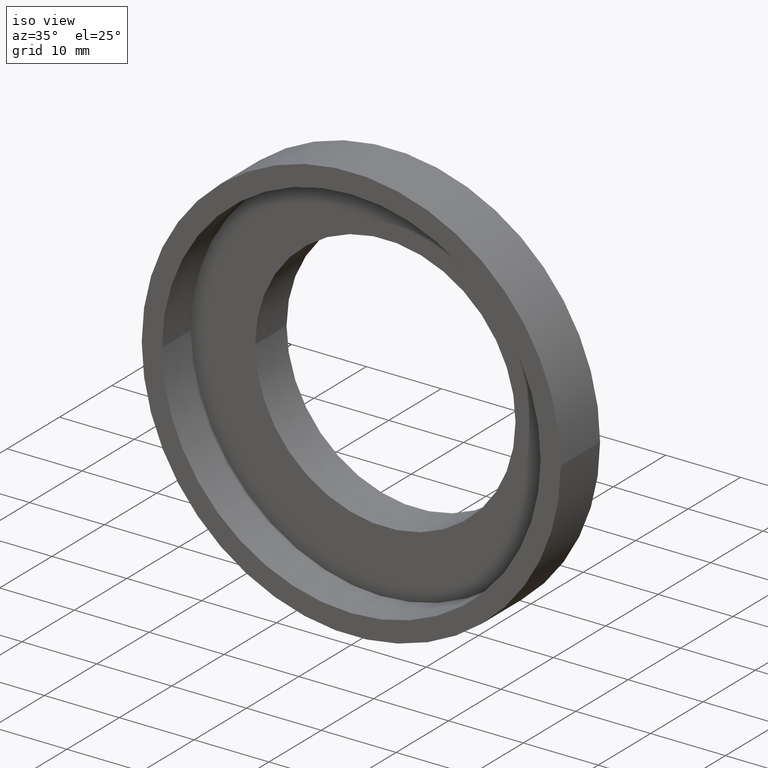
[diagram: clean part render]
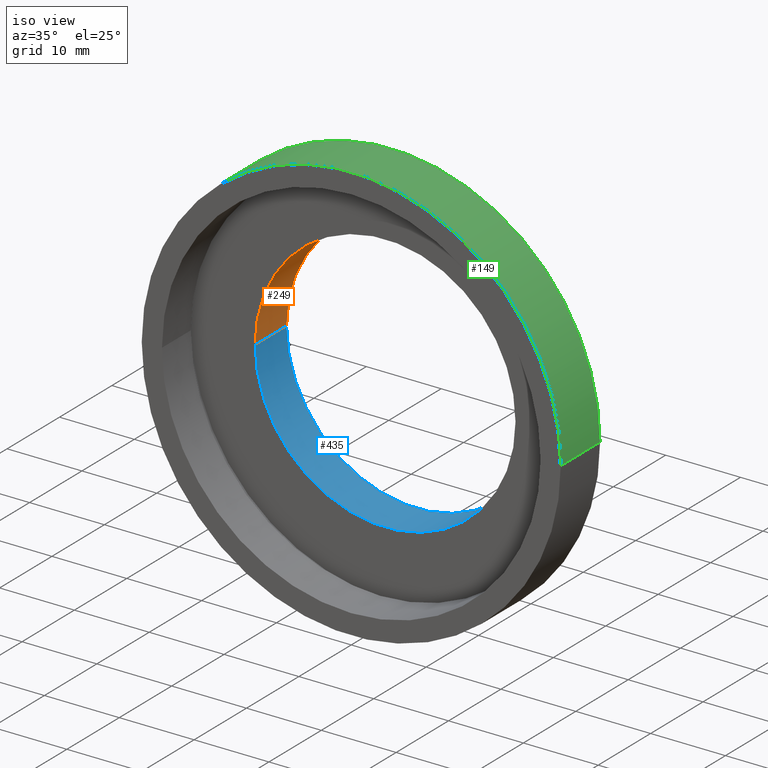
[diagram: same view with three faces highlighted in distinct colors, each labeled with its STEP entity id]
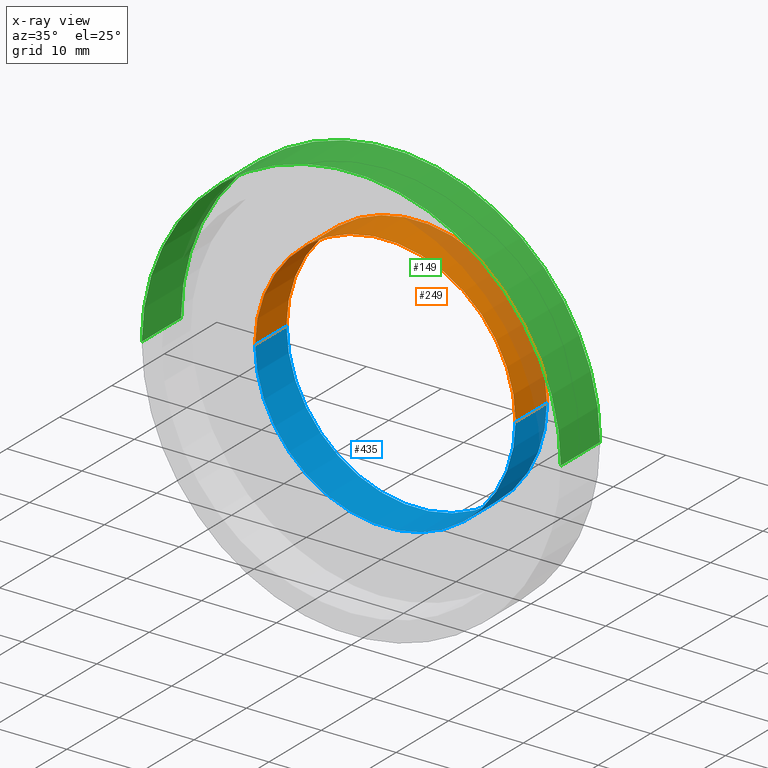
[diagram: x-ray of the same camera — body ghosted, the three highlighted faces saturated]
A machine part, iso view with three faces highlighted in distinct colors.
The next image is the same camera in x-ray (body ghosted, the three faces saturated) — at least one of them is partly hidden behind the body in this view.
Their STEP definitions:

[orange] entity #249 — the highlighted cylindrical surface (partial cylindrical patch) has radius 17.4 mm, axis along (-0, 1, -0).
#56 = EDGE_CURVE ( 'NONE', #312, #511, #372, .T. ) ;
#60 = DIRECTION ( 'NONE',  ( -1.224646799147351000E-016, 1.000000000000000000, -0.0000000000000000000 ) ) ;
#77 = VERTEX_POINT ( 'NONE', #156 ) ;
#91 = EDGE_CURVE ( 'NONE', #431, #511, #116, .T. ) ;
#105 = DIRECTION ( 'NONE',  ( -1.224646799147351000E-016, 1.000000000000000000, -0.0000000000000000000 ) ) ;
#114 = DIRECTION ( 'NONE',  ( -1.000000000000000000, -9.969675149291995700E-017, 0.0000000000000000000 ) ) ;
#116 = LINE ( 'NONE', #159, #509 ) ;
#150 = CARTESIAN_POINT ( 'NONE',  ( 17.39999999999999900, 12.49999999999999800, 2.130885430516394500E-015 ) ) ;
#156 = CARTESIAN_POINT ( 'NONE',  ( -17.39999999999999900, 6.499999999999995600, 0.0000000000000000000 ) ) ;
#159 = CARTESIAN_POINT ( 'NONE',  ( 17.39999999999999900, 16.88601823708208000, 2.130885430516394500E-015 ) ) ;
#174 = DIRECTION ( 'NONE',  ( -1.224646799147351000E-016, 1.000000000000000000, -0.0000000000000000000 ) ) ;
#197 = AXIS2_PLACEMENT_3D ( 'NONE', #357, #60, #311 ) ;
#202 = CIRCLE ( 'NONE', #356, 17.39999999999999900 ) ;
#211 = EDGE_LOOP ( 'NONE', ( #562, #404, #321, #258 ) ) ;
#227 = DIRECTION ( 'NONE',  ( -1.000000000000000000, -9.969675149291995700E-017, 0.0000000000000000000 ) ) ;
#249 = ADVANCED_FACE ( 'NONE', ( #401 ), #334, .F. ) ;
#252 = DIRECTION ( 'NONE',  ( -1.224646799147351000E-016, 1.000000000000000000, -0.0000000000000000000 ) ) ;
#258 = ORIENTED_EDGE ( 'NONE', *, *, #56, .T. ) ;
#273 = DIRECTION ( 'NONE',  ( -1.224646799147351000E-016, 1.000000000000000000, -0.0000000000000000000 ) ) ;
#288 = CARTESIAN_POINT ( 'NONE',  ( 17.39999999999999900, 6.499999999999999100, 2.130885430516394500E-015 ) ) ;
#311 = DIRECTION ( 'NONE',  ( -1.000000000000000000, -1.993935029858399100E-016, 0.0000000000000000000 ) ) ;
#312 = VERTEX_POINT ( 'NONE', #492 ) ;
#321 = ORIENTED_EDGE ( 'NONE', *, *, #364, .T. ) ;
#334 = CYLINDRICAL_SURFACE ( 'NONE', #197, 17.39999999999999900 ) ;
#346 = VECTOR ( 'NONE', #174, 1000.000000000000000 ) ;
#356 = AXIS2_PLACEMENT_3D ( 'NONE', #498, #273, #227 ) ;
#357 = CARTESIAN_POINT ( 'NONE',  ( 0.0000000000000000000, 16.88601823708207700, 0.0000000000000000000 ) ) ;
#364 = EDGE_CURVE ( 'NONE', #77, #312, #407, .T. ) ;
#372 = CIRCLE ( 'NONE', #538, 17.39999999999999900 ) ;
#398 = EDGE_CURVE ( 'NONE', #77, #431, #202, .T. ) ;
#400 = CARTESIAN_POINT ( 'NONE',  ( 5.371323195044474300E-016, 12.49999999999999600, 0.0000000000000000000 ) ) ;
#401 = FACE_OUTER_BOUND ( 'NONE', #211, .T. ) ;
#404 = ORIENTED_EDGE ( 'NONE', *, *, #398, .F. ) ;
#407 = LINE ( 'NONE', #410, #346 ) ;
#410 = CARTESIAN_POINT ( 'NONE',  ( -17.39999999999999900, 16.88601823708207300, 0.0000000000000000000 ) ) ;
#431 = VERTEX_POINT ( 'NONE', #288 ) ;
#492 = CARTESIAN_POINT ( 'NONE',  ( -17.39999999999999900, 12.49999999999999500, 0.0000000000000000000 ) ) ;
#498 = CARTESIAN_POINT ( 'NONE',  ( 1.271920398992858000E-015, 6.499999999999997300, 0.0000000000000000000 ) ) ;
#509 = VECTOR ( 'NONE', #105, 1000.000000000000000 ) ;
#511 = VERTEX_POINT ( 'NONE', #150 ) ;
#538 = AXIS2_PLACEMENT_3D ( 'NONE', #400, #252, #114 ) ;
#562 = ORIENTED_EDGE ( 'NONE', *, *, #91, .F. ) ;

[blue] entity #435 — the highlighted cylindrical surface (partial cylindrical patch) has radius 17.4 mm, axis along (-0, 1, -0).
#9 = AXIS2_PLACEMENT_3D ( 'NONE', #376, #280, #601 ) ;
#20 = AXIS2_PLACEMENT_3D ( 'NONE', #264, #586, #118 ) ;
#77 = VERTEX_POINT ( 'NONE', #156 ) ;
#91 = EDGE_CURVE ( 'NONE', #431, #511, #116, .T. ) ;
#105 = DIRECTION ( 'NONE',  ( -1.224646799147351000E-016, 1.000000000000000000, -0.0000000000000000000 ) ) ;
#116 = LINE ( 'NONE', #159, #509 ) ;
#118 = DIRECTION ( 'NONE',  ( -1.000000000000000000, -9.969675149291995700E-017, 0.0000000000000000000 ) ) ;
#150 = CARTESIAN_POINT ( 'NONE',  ( 17.39999999999999900, 12.49999999999999800, 2.130885430516394500E-015 ) ) ;
#156 = CARTESIAN_POINT ( 'NONE',  ( -17.39999999999999900, 6.499999999999995600, 0.0000000000000000000 ) ) ;
#159 = CARTESIAN_POINT ( 'NONE',  ( 17.39999999999999900, 16.88601823708208000, 2.130885430516394500E-015 ) ) ;
#174 = DIRECTION ( 'NONE',  ( -1.224646799147351000E-016, 1.000000000000000000, -0.0000000000000000000 ) ) ;
#177 = EDGE_CURVE ( 'NONE', #511, #312, #443, .T. ) ;
#242 = CARTESIAN_POINT ( 'NONE',  ( 0.0000000000000000000, 16.88601823708207700, 0.0000000000000000000 ) ) ;
#264 = CARTESIAN_POINT ( 'NONE',  ( 1.271920398992858000E-015, 6.499999999999997300, 0.0000000000000000000 ) ) ;
#274 = EDGE_CURVE ( 'NONE', #431, #77, #371, .T. ) ;
#280 = DIRECTION ( 'NONE',  ( -1.224646799147351000E-016, 1.000000000000000000, -0.0000000000000000000 ) ) ;
#288 = CARTESIAN_POINT ( 'NONE',  ( 17.39999999999999900, 6.499999999999999100, 2.130885430516394500E-015 ) ) ;
#300 = DIRECTION ( 'NONE',  ( -1.000000000000000000, -1.993935029858399100E-016, 0.0000000000000000000 ) ) ;
#312 = VERTEX_POINT ( 'NONE', #492 ) ;
#341 = CYLINDRICAL_SURFACE ( 'NONE', #505, 17.39999999999999900 ) ;
#346 = VECTOR ( 'NONE', #174, 1000.000000000000000 ) ;
#364 = EDGE_CURVE ( 'NONE', #77, #312, #407, .T. ) ;
#371 = CIRCLE ( 'NONE', #20, 17.39999999999999900 ) ;
#376 = CARTESIAN_POINT ( 'NONE',  ( 5.371323195044474300E-016, 12.49999999999999600, 0.0000000000000000000 ) ) ;
#407 = LINE ( 'NONE', #410, #346 ) ;
#410 = CARTESIAN_POINT ( 'NONE',  ( -17.39999999999999900, 16.88601823708207300, 0.0000000000000000000 ) ) ;
#417 = ORIENTED_EDGE ( 'NONE', *, *, #91, .T. ) ;
#431 = VERTEX_POINT ( 'NONE', #288 ) ;
#435 = ADVANCED_FACE ( 'NONE', ( #506 ), #341, .F. ) ;
#443 = CIRCLE ( 'NONE', #9, 17.39999999999999900 ) ;
#492 = CARTESIAN_POINT ( 'NONE',  ( -17.39999999999999900, 12.49999999999999500, 0.0000000000000000000 ) ) ;
#505 = AXIS2_PLACEMENT_3D ( 'NONE', #242, #574, #300 ) ;
#506 = FACE_OUTER_BOUND ( 'NONE', #572, .T. ) ;
#509 = VECTOR ( 'NONE', #105, 1000.000000000000000 ) ;
#511 = VERTEX_POINT ( 'NONE', #150 ) ;
#519 = ORIENTED_EDGE ( 'NONE', *, *, #364, .F. ) ;
#526 = ORIENTED_EDGE ( 'NONE', *, *, #274, .F. ) ;
#549 = ORIENTED_EDGE ( 'NONE', *, *, #177, .T. ) ;
#572 = EDGE_LOOP ( 'NONE', ( #526, #417, #549, #519 ) ) ;
#574 = DIRECTION ( 'NONE',  ( -1.224646799147351000E-016, 1.000000000000000000, -0.0000000000000000000 ) ) ;
#586 = DIRECTION ( 'NONE',  ( -1.224646799147351000E-016, 1.000000000000000000, -0.0000000000000000000 ) ) ;
#601 = DIRECTION ( 'NONE',  ( -1.000000000000000000, -9.969675149291995700E-017, 0.0000000000000000000 ) ) ;

[green] entity #149 — the highlighted cylindrical surface (partial cylindrical patch) has radius 28 mm, axis along (-0, 1, -0).
#28 = EDGE_CURVE ( 'NONE', #140, #278, #225, .T. ) ;
#61 = ORIENTED_EDGE ( 'NONE', *, *, #108, .F. ) ;
#67 = AXIS2_PLACEMENT_3D ( 'NONE', #83, #559, #188 ) ;
#73 = ORIENTED_EDGE ( 'NONE', *, *, #504, .T. ) ;
#78 = AXIS2_PLACEMENT_3D ( 'NONE', #87, #133, #379 ) ;
#83 = CARTESIAN_POINT ( 'NONE',  ( 1.149455719078123100E-015, 7.499999999999996400, 0.0000000000000000000 ) ) ;
#87 = CARTESIAN_POINT ( 'NONE',  ( 0.0000000000000000000, 16.88601823708207700, 0.0000000000000000000 ) ) ;
#99 = CARTESIAN_POINT ( 'NONE',  ( 27.99999999999999600, 16.88601823708208000, 3.429011037612588900E-015 ) ) ;
#108 = EDGE_CURVE ( 'NONE', #310, #278, #180, .T. ) ;
#133 = DIRECTION ( 'NONE',  ( -1.224646799147351000E-016, 1.000000000000000000, -0.0000000000000000000 ) ) ;
#140 = VERTEX_POINT ( 'NONE', #615 ) ;
#149 = ADVANCED_FACE ( 'NONE', ( #599 ), #387, .T. ) ;
#161 = ORIENTED_EDGE ( 'NONE', *, *, #293, .F. ) ;
#167 = AXIS2_PLACEMENT_3D ( 'NONE', #297, #485, #325 ) ;
#169 = DIRECTION ( 'NONE',  ( -1.224646799147351000E-016, 1.000000000000000000, -0.0000000000000000000 ) ) ;
#180 = CIRCLE ( 'NONE', #67, 28.00000000000000000 ) ;
#188 = DIRECTION ( 'NONE',  ( -1.000000000000000000, -1.239088197126290800E-016, 0.0000000000000000000 ) ) ;
#208 = VECTOR ( 'NONE', #169, 1000.000000000000000 ) ;
#218 = VERTEX_POINT ( 'NONE', #598 ) ;
#224 = CARTESIAN_POINT ( 'NONE',  ( -28.00000000000000000, 7.499999999999992900, 0.0000000000000000000 ) ) ;
#225 = LINE ( 'NONE', #99, #457 ) ;
#248 = ORIENTED_EDGE ( 'NONE', *, *, #28, .T. ) ;
#265 = CARTESIAN_POINT ( 'NONE',  ( -27.99999999999999600, 16.88601823708207300, 0.0000000000000000000 ) ) ;
#272 = CIRCLE ( 'NONE', #167, 27.99999999999999600 ) ;
#278 = VERTEX_POINT ( 'NONE', #576 ) ;
#293 = EDGE_CURVE ( 'NONE', #218, #310, #560, .T. ) ;
#297 = CARTESIAN_POINT ( 'NONE',  ( 2.067940818438636500E-015, -3.469446951953614200E-015, 0.0000000000000000000 ) ) ;
#310 = VERTEX_POINT ( 'NONE', #224 ) ;
#325 = DIRECTION ( 'NONE',  ( -1.000000000000000000, -1.224646799147351200E-016, 0.0000000000000000000 ) ) ;
#379 = DIRECTION ( 'NONE',  ( -1.000000000000000000, -1.239088197126290800E-016, 0.0000000000000000000 ) ) ;
#383 = DIRECTION ( 'NONE',  ( -1.224646799147351000E-016, 1.000000000000000000, -0.0000000000000000000 ) ) ;
#387 = CYLINDRICAL_SURFACE ( 'NONE', #78, 27.99999999999999600 ) ;
#453 = EDGE_LOOP ( 'NONE', ( #73, #248, #61, #161 ) ) ;
#457 = VECTOR ( 'NONE', #383, 1000.000000000000000 ) ;
#485 = DIRECTION ( 'NONE',  ( -1.224646799147351000E-016, 1.000000000000000000, -0.0000000000000000000 ) ) ;
#504 = EDGE_CURVE ( 'NONE', #218, #140, #272, .T. ) ;
#559 = DIRECTION ( 'NONE',  ( -1.224646799147351000E-016, 1.000000000000000000, -0.0000000000000000000 ) ) ;
#560 = LINE ( 'NONE', #265, #208 ) ;
#576 = CARTESIAN_POINT ( 'NONE',  ( 28.00000000000000400, 7.500000000000000000, 3.429011037612589700E-015 ) ) ;
#598 = CARTESIAN_POINT ( 'NONE',  ( -27.99999999999999300, -6.898457989566196800E-015, 0.0000000000000000000 ) ) ;
#599 = FACE_OUTER_BOUND ( 'NONE', #453, .T. ) ;
#615 = CARTESIAN_POINT ( 'NONE',  ( 28.00000000000000400, -4.043591434103126100E-017, 3.429011037612589700E-015 ) ) ;